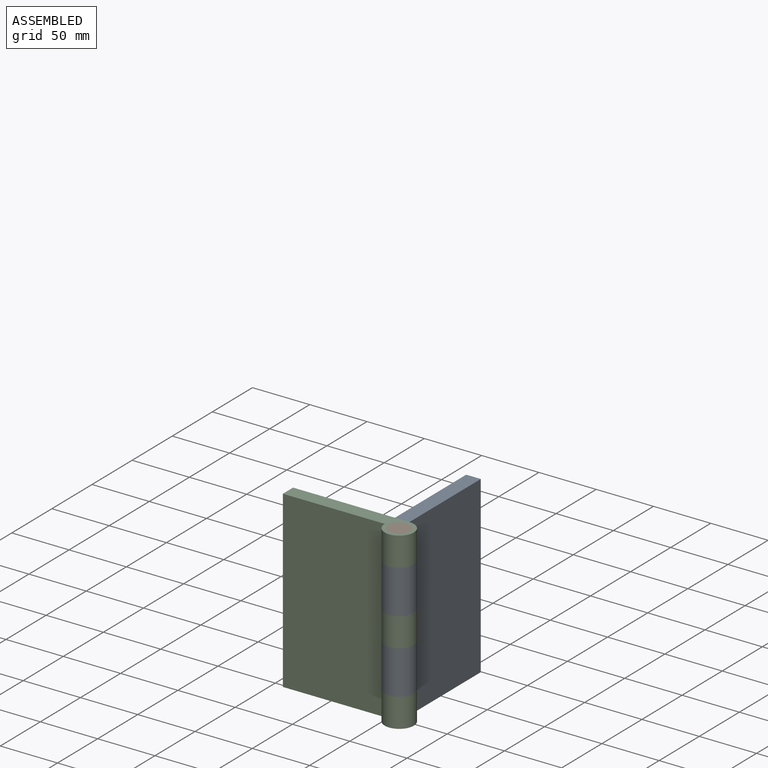
[diagram: assembled view]
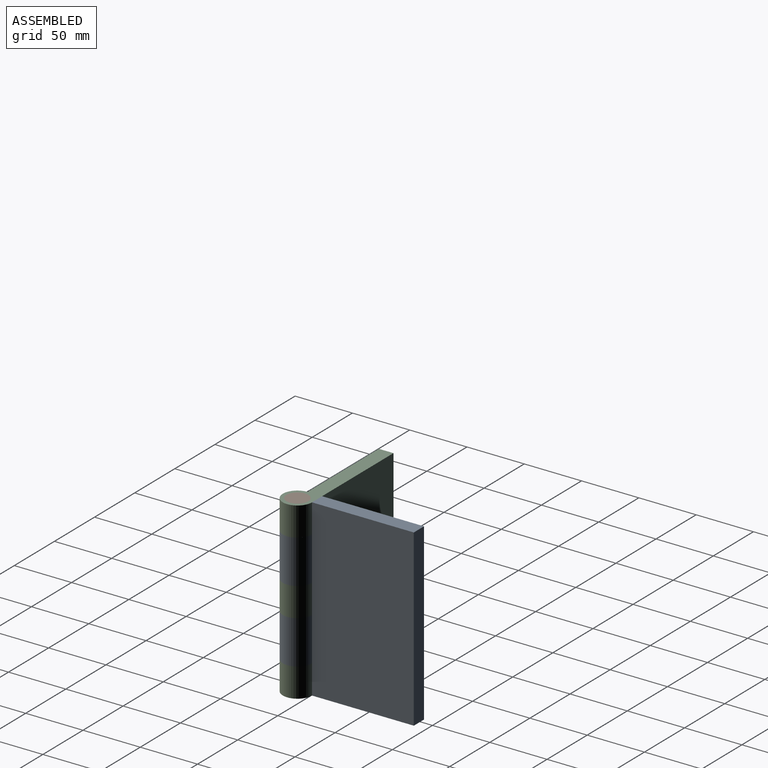
[diagram: assembled view, second angle]
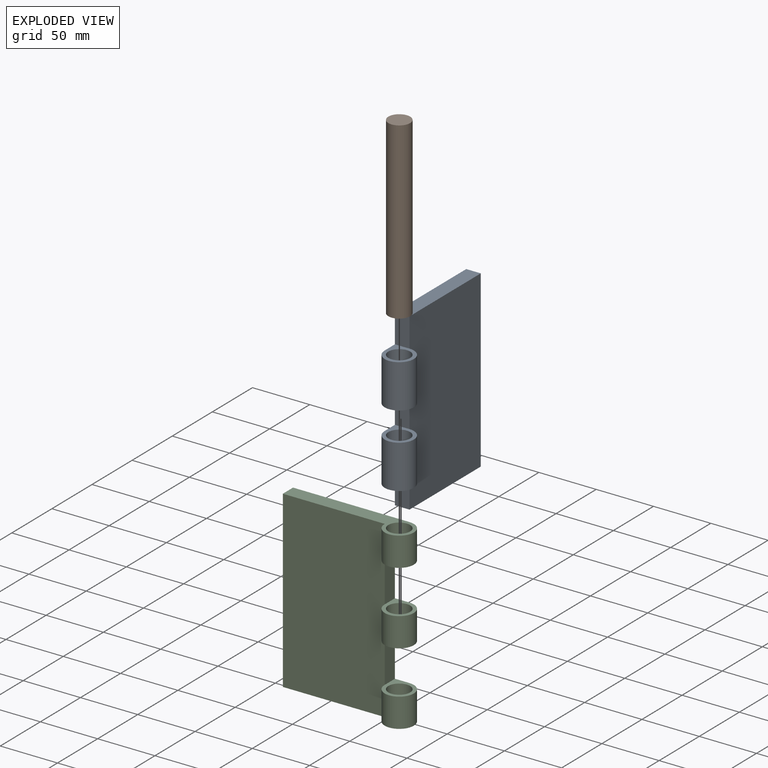
[diagram: exploded view]
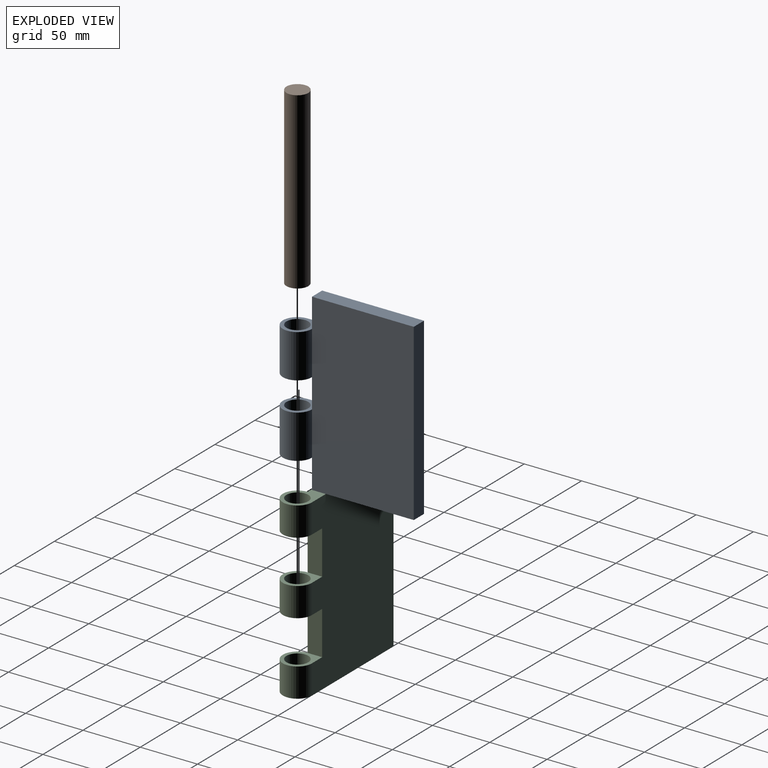
[diagram: exploded view, second angle]
ASSEMBLY  parts=3 mates=2
PART A: 16 faces, bbox 114.3x25.4x152.4 mm
  f0: plane 152.4x101.6mm, normal (0,1,0), area 14516.1mm2, adj f1,f2,f3,f4,f5,f7,f8,f9
  f1: cylinder r=12.7mm len=38.1mm, axis (0,0,1), area 2280.2mm2, adj f0,f6,f8,f12
  f2: cylinder r=12.7mm len=38.1mm, axis (0,0,1), area 2280.2mm2, adj f0,f6,f9,f14
  f3: plane 88.9x12.7mm, normal (0,0,1), area 1129mm2, adj f0,f4,f6,f13
  f4: plane 152.4x12.7mm, normal (-1,0,0), area 1935.5mm2, adj f0,f3,f5,f6
  f5: plane 88.9x12.7mm, normal (0,0,-1), area 1129mm2, adj f0,f4,f6,f11
  f6: plane 152.4x88.9mm, normal (0,-1,0), area 13548.4mm2, adj f1,f2,f3,f4,f5,f7,f11,f13
  f7: plane 25.4x12.7mm, normal (1,0,0), area 322.6mm2, adj f0,f6,f8,f9
  f8: plane 25.4x25.4mm, normal (0,0,1), area 256.3mm2, adj f0,f1,f7,f10
  f9: plane 25.4x25.4mm, normal (0,0,-1), area 256.3mm2, adj f0,f2,f7,f15
  f10: cylinder r=9.53mm len=38.1mm, axis (0,0,1), area 2280.2mm2, adj f8,f12
  f11: plane 25.4x12.7mm, normal (1,0,0), area 322.6mm2, adj f0,f5,f6,f12
  f12: plane 25.4x25.4mm, normal (0,0,-1), area 256.3mm2, adj f0,f1,f10,f11
  f13: plane 25.4x12.7mm, normal (1,0,0), area 322.6mm2, adj f0,f3,f6,f14
  f14: plane 25.4x25.4mm, normal (0,0,1), area 256.3mm2, adj f0,f2,f13,f15
  f15: cylinder r=9.53mm len=38.1mm, axis (0,0,1), area 2280.2mm2, adj f9,f14
PART B: 3 faces, bbox 19.1x19.1x152.4 mm
  f0: cylinder r=9.53mm len=152.4mm, axis (0,0,1), area 9120.7mm2, adj f1,f2
  f1: plane 19.05x19.05mm, normal (0,0,-1), area 285mm2, adj f0
  f2: plane 19.05x19.05mm, normal (0,0,1), area 285mm2, adj f0
PART C: 17 faces, bbox 114.3x25.4x152.4 mm
  f0: plane 152.4x101.6mm, normal (0,1,0), area 14516.1mm2, adj f1,f2,f3,f5,f6,f7,f10,f11
  f1: cylinder r=12.7mm len=25.4mm, axis (0,0,1), area 1520.1mm2, adj f0,f5,f8,f15
  f2: cylinder r=12.7mm len=25.4mm, axis (0,0,1), area 1520.1mm2, adj f0,f8,f11,f16
  f3: cylinder r=12.7mm len=25.4mm, axis (0,0,1), area 1520.1mm2, adj f0,f7,f8,f12
  f4: cylinder r=9.53mm len=25.4mm, axis (0,0,1), area 1520.1mm2, adj f5,f15
  f5: plane 114.3x25.4mm, normal (0,0,1), area 1385.3mm2, adj f0,f1,f4,f6,f8
  f6: plane 152.4x12.7mm, normal (-1,0,0), area 1935.5mm2, adj f0,f5,f7,f8
  f7: plane 114.3x25.4mm, normal (0,0,-1), area 1385.3mm2, adj f0,f3,f6,f8,f9
  f8: plane 152.4x88.9mm, normal (0,-1,0), area 13548.4mm2, adj f1,f2,f3,f5,f6,f7,f10,f14
  f9: cylinder r=9.53mm len=25.4mm, axis (0,0,1), area 1520.1mm2, adj f7,f12
  f10: plane 38.1x12.7mm, normal (1,0,0), area 483.9mm2, adj f0,f8,f11,f12
  f11: plane 25.4x25.4mm, normal (0,0,-1), area 256.3mm2, adj f0,f2,f10,f13
  f12: plane 25.4x25.4mm, normal (0,0,1), area 256.3mm2, adj f0,f3,f9,f10
  f13: cylinder r=9.53mm len=25.4mm, axis (0,0,1), area 1520.1mm2, adj f11,f16
  f14: plane 38.1x12.7mm, normal (1,0,0), area 483.9mm2, adj f0,f8,f15,f16
  f15: plane 25.4x25.4mm, normal (0,0,-1), area 256.3mm2, adj f0,f1,f4,f14
  f16: plane 25.4x25.4mm, normal (0,0,1), area 256.3mm2, adj f0,f2,f13,f14
PLACE A rot(axis=(-0.71,0.71,0),180deg) t=(101.23,103.98,6.77)mm
PLACE B t=(113.93,41.88,81.67)mm
PLACE C t=(51.83,54.58,4.18)mm fixed
MATE fastened C.f1 <-> B.f0  axis (0,0,1) through (113.93,41.88,81.67)mm
MATE revolute A.f1 <-> C.f1  axis (0,0,-1) through (113.93,41.88,56.27)mm
